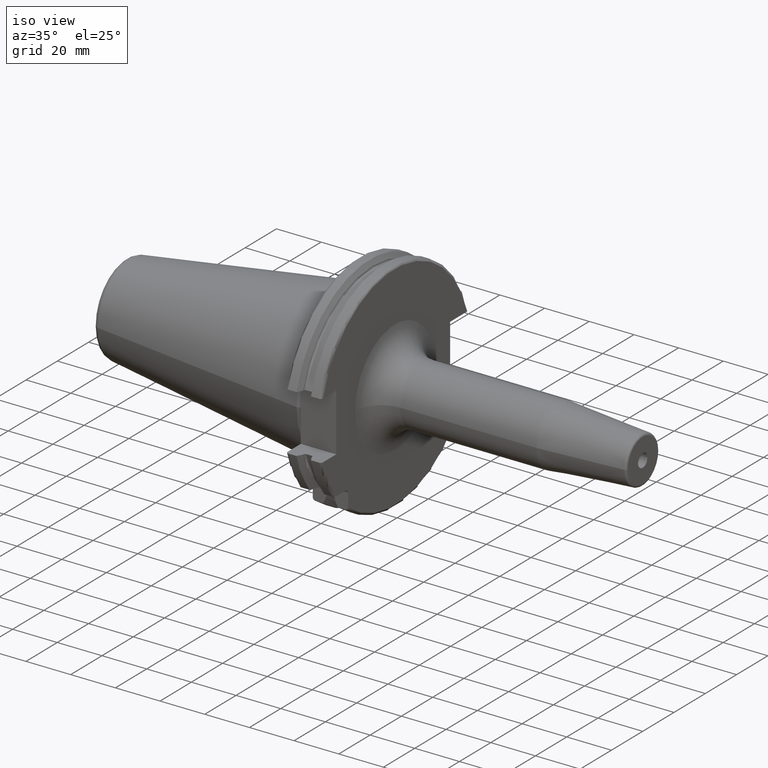
[diagram: clean part render]
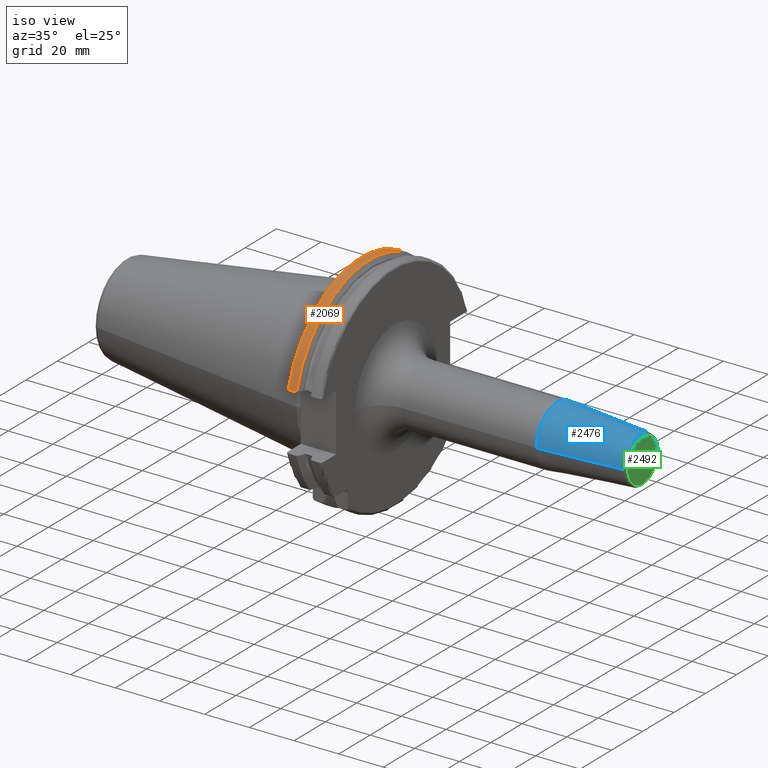
[diagram: same view with three faces highlighted in distinct colors, each labeled with its STEP entity id]
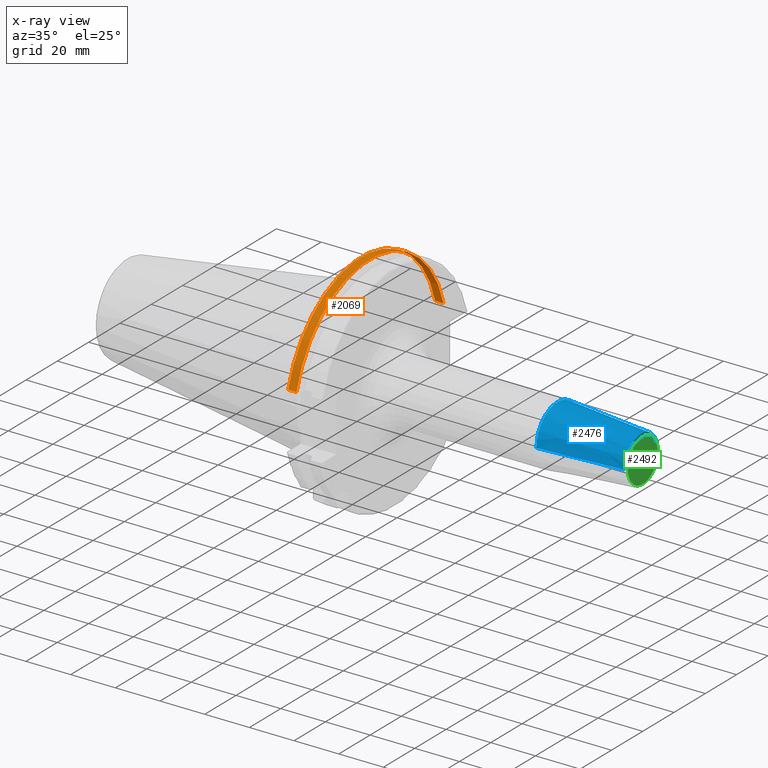
[diagram: x-ray of the same camera — body ghosted, the three highlighted faces saturated]
A machine part, iso view with three faces highlighted in distinct colors.
The next image is the same camera in x-ray (body ghosted, the three faces saturated) — at least one of them is partly hidden behind the body in this view.
Their STEP definitions:

[orange] entity #2069 — the highlighted cylindrical surface (partial cylindrical patch) has radius 48.7375 mm, axis along (1, 0, 0).
#333=CARTESIAN_POINT('',(7.934621614173E0,4.699929686974E1,1.29E1));
#345=CARTESIAN_POINT('',(7.934621614173E0,-4.699929686974E1,1.29E1));
#476=DIRECTION('',(1.E0,0.E0,0.E0));
#477=VECTOR('',#476,3.734621614173E0);
#478=CARTESIAN_POINT('',(4.2E0,4.699929686974E1,1.29E1));
#479=LINE('',#478,#477);
#480=CARTESIAN_POINT('',(7.934621614173E0,0.E0,0.E0));
#481=DIRECTION('',(1.E0,0.E0,0.E0));
#482=DIRECTION('',(0.E0,9.643354064066E-1,2.646832521159E-1));
#483=AXIS2_PLACEMENT_3D('',#480,#481,#482);
#485=DIRECTION('',(1.E0,0.E0,0.E0));
#486=VECTOR('',#485,3.734621614173E0);
#487=CARTESIAN_POINT('',(4.2E0,-4.699929686974E1,1.29E1));
#488=LINE('',#487,#486);
#518=CARTESIAN_POINT('',(4.2E0,0.E0,0.E0));
#519=DIRECTION('',(1.E0,0.E0,0.E0));
#520=DIRECTION('',(0.E0,9.643354064066E-1,2.646832521159E-1));
#521=AXIS2_PLACEMENT_3D('',#518,#519,#520);
#1316=VERTEX_POINT('',#333);
#1317=VERTEX_POINT('',#345);
#1344=CARTESIAN_POINT('',(4.2E0,4.699929686974E1,1.29E1));
#1345=VERTEX_POINT('',#1344);
#1348=CARTESIAN_POINT('',(4.2E0,-4.699929686974E1,1.29E1));
#1349=VERTEX_POINT('',#1348);
#2057=CARTESIAN_POINT('',(-1.076325E2,0.E0,0.E0));
#2058=DIRECTION('',(1.E0,0.E0,0.E0));
#2059=DIRECTION('',(0.E0,-1.E0,0.E0));
#2060=AXIS2_PLACEMENT_3D('',#2057,#2058,#2059);
#2061=CYLINDRICAL_SURFACE('',#2060,4.87375E1);
#2062=ORIENTED_EDGE('',*,*,#1893,.T.);
#2063=ORIENTED_EDGE('',*,*,#1926,.T.);
#2064=ORIENTED_EDGE('',*,*,#1957,.F.);
#2066=ORIENTED_EDGE('',*,*,#2065,.F.);
#2067=EDGE_LOOP('',(#2062,#2063,#2064,#2066));
#2068=FACE_OUTER_BOUND('',#2067,.F.);
#2069=ADVANCED_FACE('',(#2068),#2061,.T.);
#484=CIRCLE('',#483,4.87375E1);
#522=CIRCLE('',#521,4.87375E1);
#1893=EDGE_CURVE('',#1345,#1316,#479,.T.);
#1926=EDGE_CURVE('',#1316,#1317,#484,.T.);
#1957=EDGE_CURVE('',#1349,#1317,#488,.T.);
#2065=EDGE_CURVE('',#1345,#1349,#522,.T.);

[blue] entity #2476 — the highlighted conical surface has half-angle 4.5 deg.
#911=CARTESIAN_POINT('',(9.188138579148E1,0.E0,0.E0));
#912=DIRECTION('',(1.E0,0.E0,0.E0));
#913=DIRECTION('',(0.E0,1.E0,0.E0));
#914=AXIS2_PLACEMENT_3D('',#911,#912,#913);
#939=DIRECTION('',(-9.969173337331E-1,7.845909572785E-2,1.680001370298E-13));
#940=VECTOR('',#939,3.731209403789E1);
#941=CARTESIAN_POINT('',(1.290784590957E2,1.057252684207E1,
-6.266783638056E-12));
#942=LINE('',#941,#940);
#943=DIRECTION('',(-9.969173337331E-1,-7.845909572785E-2,-1.679914618191E-13));
#944=VECTOR('',#943,3.731209403789E1);
#945=CARTESIAN_POINT('',(1.290784590957E2,-1.057252684207E1,
6.266459947777E-12));
#946=LINE('',#945,#944);
#957=CARTESIAN_POINT('',(1.290784590957E2,0.E0,0.E0));
#958=DIRECTION('',(-1.E0,0.E0,0.E0));
#959=DIRECTION('',(0.E0,-1.E0,0.E0));
#960=AXIS2_PLACEMENT_3D('',#957,#958,#959);
#1432=CARTESIAN_POINT('',(9.188138579148E1,1.35E1,0.E0));
#1433=CARTESIAN_POINT('',(9.188138579148E1,-1.35E1,0.E0));
#1434=VERTEX_POINT('',#1432);
#1435=VERTEX_POINT('',#1433);
#1436=CARTESIAN_POINT('',(1.290784590957E2,1.057252684207E1,0.E0));
#1437=CARTESIAN_POINT('',(1.290784590957E2,-1.057252684207E1,0.E0));
#1438=VERTEX_POINT('',#1436);
#1439=VERTEX_POINT('',#1437);
#2465=CARTESIAN_POINT('',(1.104799224436E2,0.E0,0.E0));
#2466=DIRECTION('',(-1.E0,0.E0,0.E0));
#2467=DIRECTION('',(0.E0,1.E0,0.E0));
#2468=AXIS2_PLACEMENT_3D('',#2465,#2466,#2467);
#2469=CONICAL_SURFACE('',#2468,1.203626342104E1,4.5E0);
#2470=ORIENTED_EDGE('',*,*,#2456,.F.);
#2471=ORIENTED_EDGE('',*,*,#2431,.T.);
#2472=ORIENTED_EDGE('',*,*,#2401,.F.);
#2473=ORIENTED_EDGE('',*,*,#2428,.F.);
#2474=EDGE_LOOP('',(#2470,#2471,#2472,#2473));
#2475=FACE_OUTER_BOUND('',#2474,.F.);
#2476=ADVANCED_FACE('',(#2475),#2469,.T.);
#915=CIRCLE('',#914,1.35E1);
#961=CIRCLE('',#960,1.057252684207E1);
#2401=EDGE_CURVE('',#1434,#1435,#915,.T.);
#2428=EDGE_CURVE('',#1438,#1434,#942,.T.);
#2431=EDGE_CURVE('',#1439,#1435,#946,.T.);
#2456=EDGE_CURVE('',#1439,#1438,#961,.T.);

[green] entity #2492 — the highlighted planar face has unit normal (1, 0, 0).
#962=CARTESIAN_POINT('',(1.3E2,0.E0,0.E0));
#963=DIRECTION('',(-1.E0,0.E0,0.E0));
#964=DIRECTION('',(0.E0,1.E0,0.E0));
#965=AXIS2_PLACEMENT_3D('',#962,#963,#964);
#967=CARTESIAN_POINT('',(1.3E2,0.E0,0.E0));
#968=DIRECTION('',(-1.E0,0.E0,0.E0));
#969=DIRECTION('',(0.E0,-1.E0,0.E0));
#970=AXIS2_PLACEMENT_3D('',#967,#968,#969);
#972=CARTESIAN_POINT('',(1.3E2,0.E0,0.E0));
#973=DIRECTION('',(-1.E0,0.E0,0.E0));
#974=DIRECTION('',(0.E0,-1.E0,0.E0));
#975=AXIS2_PLACEMENT_3D('',#972,#973,#974);
#977=CARTESIAN_POINT('',(1.3E2,0.E0,0.E0));
#978=DIRECTION('',(-1.E0,0.E0,0.E0));
#979=DIRECTION('',(0.E0,1.E0,0.E0));
#980=AXIS2_PLACEMENT_3D('',#977,#978,#979);
#1440=CARTESIAN_POINT('',(1.3E2,9.575609508342E0,0.E0));
#1441=CARTESIAN_POINT('',(1.3E2,-9.575609508342E0,0.E0));
#1442=VERTEX_POINT('',#1440);
#1443=VERTEX_POINT('',#1441);
#1456=CARTESIAN_POINT('',(1.3E2,-3.E0,0.E0));
#1457=CARTESIAN_POINT('',(1.3E2,3.E0,0.E0));
#1458=VERTEX_POINT('',#1456);
#1459=VERTEX_POINT('',#1457);
#2477=CARTESIAN_POINT('',(1.3E2,0.E0,0.E0));
#2478=DIRECTION('',(1.E0,0.E0,0.E0));
#2479=DIRECTION('',(0.E0,-1.E0,0.E0));
#2480=AXIS2_PLACEMENT_3D('',#2477,#2478,#2479);
#2481=PLANE('',#2480);
#2482=ORIENTED_EDGE('',*,*,#2444,.T.);
#2483=ORIENTED_EDGE('',*,*,#2459,.T.);
#2484=EDGE_LOOP('',(#2482,#2483));
#2485=FACE_OUTER_BOUND('',#2484,.F.);
#2487=ORIENTED_EDGE('',*,*,#2486,.F.);
#2489=ORIENTED_EDGE('',*,*,#2488,.F.);
#2490=EDGE_LOOP('',(#2487,#2489));
#2491=FACE_BOUND('',#2490,.F.);
#2492=ADVANCED_FACE('',(#2485,#2491),#2481,.T.);
#966=CIRCLE('',#965,9.575609508342E0);
#971=CIRCLE('',#970,9.575609508342E0);
#976=CIRCLE('',#975,3.E0);
#981=CIRCLE('',#980,3.E0);
#2444=EDGE_CURVE('',#1442,#1443,#966,.T.);
#2459=EDGE_CURVE('',#1443,#1442,#971,.T.);
#2486=EDGE_CURVE('',#1458,#1459,#976,.T.);
#2488=EDGE_CURVE('',#1459,#1458,#981,.T.);